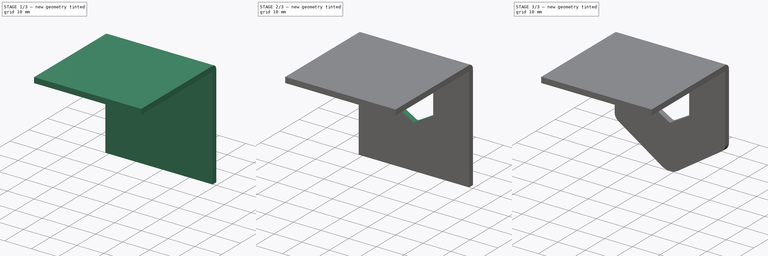
[diagram: build sequence overview — one tinted view per stage of 3, left to right]
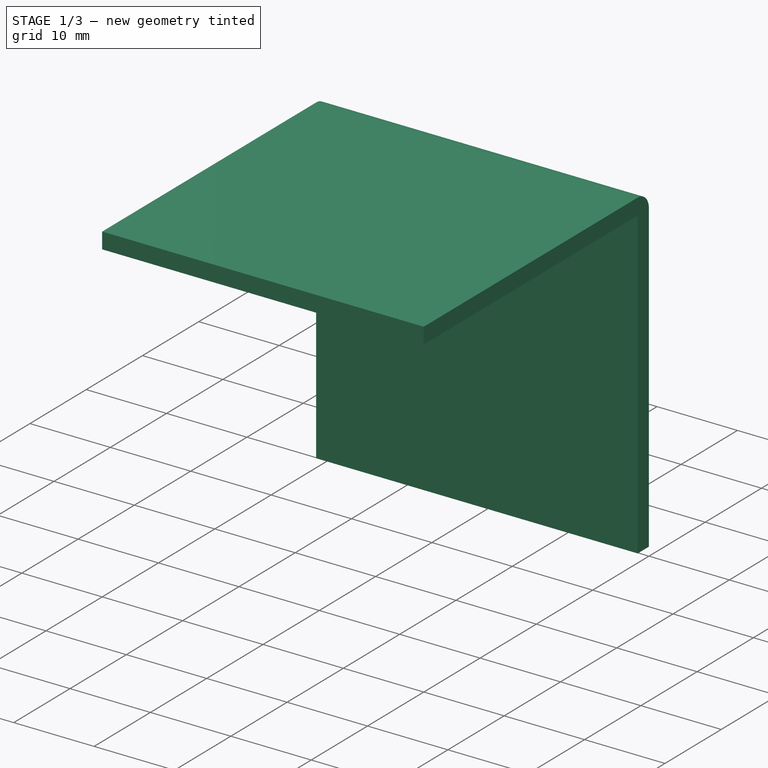
[diagram: stage 1 of 3 — iso view after this stage's code; geometry added in this stage tinted green]
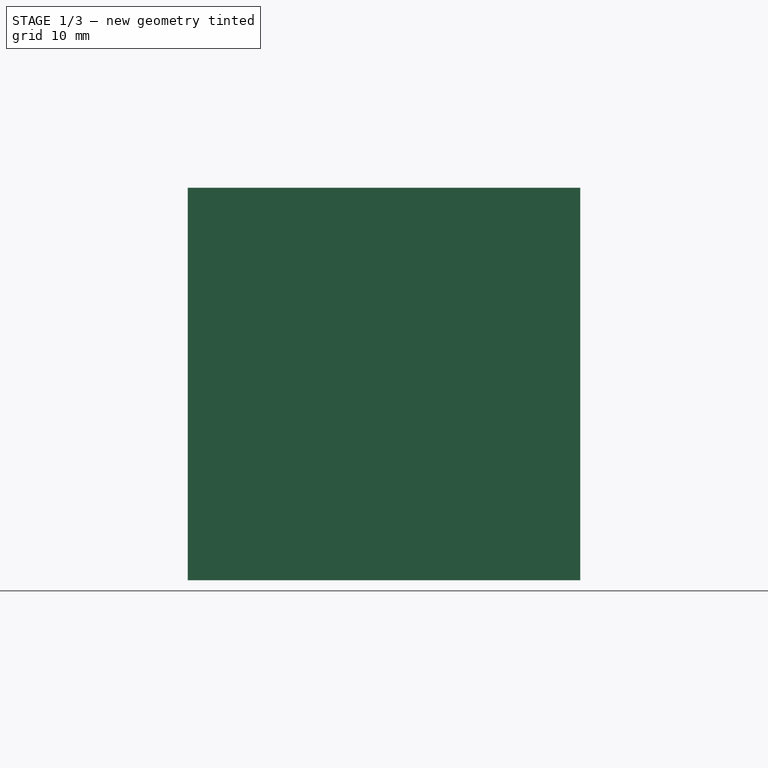
[diagram: stage 1 of 3 — front view after this stage's code; geometry added in this stage tinted green]
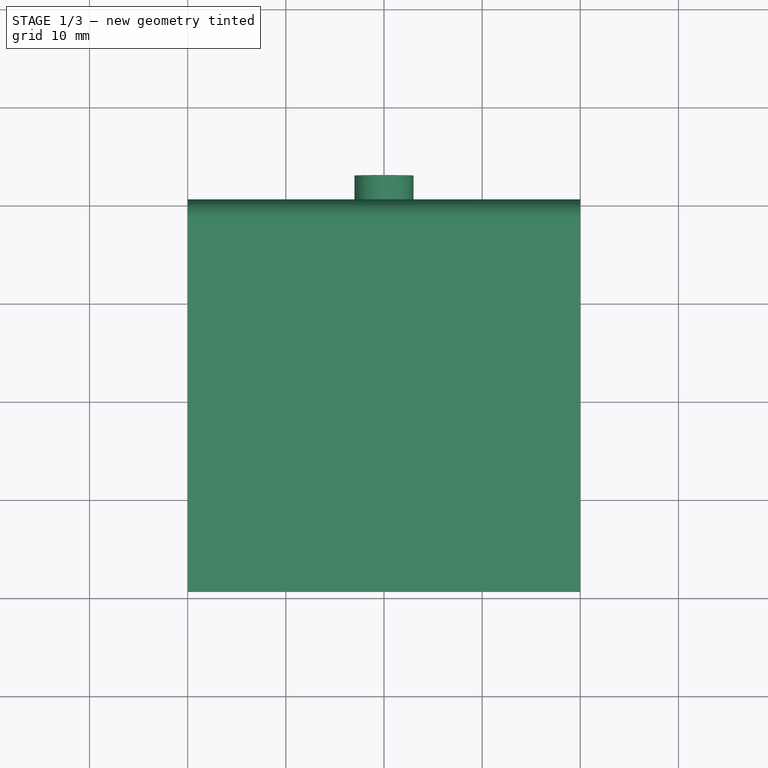
[diagram: stage 1 of 3 — top view after this stage's code; geometry added in this stage tinted green]
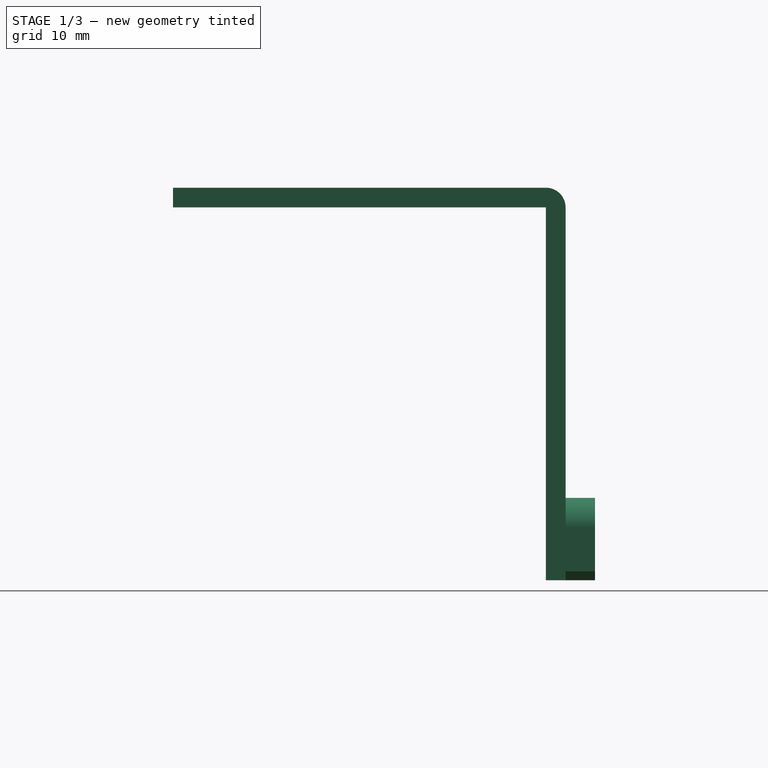
[diagram: stage 1 of 3 — right view after this stage's code; geometry added in this stage tinted green]
FCSTD DOCUMENT  (FreeCAD 0.21R33771 (Git))
Label: ComponentOrganizerCabinetHanger
License: All rights reserved
LicenseURL: http://en.wikipedia.org/wiki/All_rights_reserved
objects: Sketcher::SketchObject×7, PartDesign::Pad×3, PartDesign::Pocket×3, PartDesign::Body×1
note: 20 computed .brp shape members not serialized (recipe doc carries the construction recipe); baked Part::Feature solids carry a one-line shape summary decoded from their .brp

FEATURE [Sketcher::SketchObject] Sketch
  FullyConstrained = true
  MapMode = 5
  Placement = pos=(0,0,0) rot=(0.57735,0.57735,0.57735;2.0944rad)
  Support = -> [YZ_Plane]
  expr: Constraints[13] = <<Template>>.Constraints.Ro
  expr: Constraints[16] = <<Template>>.Constraints.Height
  sketch-geometry (7):
    g0: LineSegment StartX=-40 StartY=32.6 StartZ=0 EndX=-2 EndY=32.6 EndZ=0
    g1: LineSegment StartX=-2 StartY=32.6 StartZ=0 EndX=-2 EndY=-5.4 EndZ=0
    g2: LineSegment StartX=-2 StartY=-5.4 StartZ=0 EndX=0 EndY=-5.4 EndZ=0
    g3: LineSegment StartX=0 StartY=-5.4 StartZ=0 EndX=0 EndY=32.6 EndZ=0
    g4: LineSegment StartX=-2 StartY=34.6 StartZ=0 EndX=-40 EndY=34.6 EndZ=0
    g5: LineSegment StartX=-40 StartY=34.6 StartZ=0 EndX=-40 EndY=32.6 EndZ=0
    g6: ArcOfCircle CenterX=-2 CenterY=32.6 CenterZ=0 NormalX=0 NormalY=0 NormalZ=1 AngleXU=0 Radius=2 StartAngle=0 EndAngle=1.5708
  constraints (19):
    c: Horizontal(g0)
    c: Coincident(g0,g1)
    c: Vertical(g1)
    c: Coincident(g1,g2)
    c: Horizontal(g2)
    c: Coincident(g2,g3)
    c: Vertical(g3)
    c: Horizontal(g4)
    c: Coincident(g4,g5)
    c: Vertical(g5)
    c: Coincident(g0,g5)
    c: DistanceY(g5,g5) = 2
    c: PointOnObject(g-1,g3)
    c: DistanceY(g2,g-1) = 5.4
    c: Tangent(g3,g6) = -1.5708
    c: Tangent(g4,g6) = -1.5708
    c: DistanceY(g2,g4) = 40
    c: DistanceX(g4,g3) = 40
    c: Coincident(g6,g0)
FEATURE [PartDesign::Pad] Pad
  Direction = (1,-2e-16,3e-16)
  Length = 40
  Length2 = 10
  Midplane = true
  Placement = pos=(0,0,0) rot=(1,1,1;2.0944rad)
  Profile = -> Sketch
  ReferenceAxis = -> Sketch [N_Axis]
  Type = 0
  expr: Length = <<Template>>.Constraints.Width
FEATURE [Sketcher::SketchObject] Sketch001  label="Template"
  FullyConstrained = true
  MapMode = 5
  Placement = pos=(0,0,0) rot=(0,0.707107,0.707107;3.14159rad)
  Support = -> [XZ_Plane]
  sketch-geometry (21):
    g0: ArcOfCircle CenterX=0 CenterY=-8.13 CenterZ=0 NormalX=0 NormalY=0 NormalZ=1 AngleXU=0 Radius=5.95 StartAngle=2.1587 EndAngle=7.26607
    g1: LineSegment StartX=-3.3 StartY=-3.17899 StartZ=0 EndX=3.3 EndY=-3.17899 EndZ=0
    g2: LineSegment StartX=-3.3 StartY=-3.17899 StartZ=0 EndX=-3.3 EndY=0 EndZ=0
    g3: LineSegment StartX=3.3 StartY=-3.17899 StartZ=0 EndX=3.3 EndY=0 EndZ=0
    g4: ArcOfCircle CenterX=0 CenterY=0 CenterZ=0 NormalX=0 NormalY=0 NormalZ=1 AngleXU=0 Radius=3.3 StartAngle=0 EndAngle=3.14159
    g5: LineSegment StartX=-3.3 StartY=0 StartZ=0 EndX=3.3 EndY=0 EndZ=0
    g6: GeomPoint X=0 Y=3.3 Z=0
    g7: GeomPoint X=0 Y=-14.08 Z=0
    g8: LineSegment StartX=0 StartY=3.3 StartZ=0 EndX=0 EndY=-14.08 EndZ=0
    g9: Circle CenterX=0 CenterY=0 CenterZ=0 NormalX=0 NormalY=0 NormalZ=1 AngleXU=0 Radius=3
    g10: Circle CenterX=0 CenterY=0 CenterZ=0 NormalX=0 NormalY=0 NormalZ=1 AngleXU=0 Radius=5.4
    g11: LineSegment StartX=-3 StartY=0 StartZ=0 EndX=-3 EndY=-4.48999 EndZ=0
    g12: LineSegment StartX=3 StartY=-4e-16 StartZ=0 EndX=3 EndY=-4.48999 EndZ=0
    g13: LineSegment StartX=-20 StartY=34.6 StartZ=0 EndX=20 EndY=34.6 EndZ=0
    g14: LineSegment StartX=20 StartY=34.6 StartZ=0 EndX=20 EndY=-5.4 EndZ=0
    g15: LineSegment StartX=20 StartY=-5.4 StartZ=0 EndX=-20 EndY=-5.4 EndZ=0
    g16: LineSegment StartX=-20 StartY=-5.4 StartZ=0 EndX=-20 EndY=34.6 EndZ=0
    g17: LineSegment StartX=-3 StartY=-4.48999 StartZ=0 EndX=-18.6667 EndY=5.97781 EndZ=0
    g18: LineSegment StartX=3 StartY=-4.48999 StartZ=0 EndX=18.6667 EndY=5.97782 EndZ=0
    g19: ArcOfCircle CenterX=17 CenterY=8.47225 CenterZ=0 NormalX=0 NormalY=0 NormalZ=1 AngleXU=0 Radius=3 StartAngle=5.30142 EndAngle=6.28319
    g20: ArcOfCircle CenterX=-17 CenterY=8.47224 CenterZ=0 NormalX=0 NormalY=0 NormalZ=1 AngleXU=0 Radius=3 StartAngle=3.14159 EndAngle=4.12336
  constraints (54):
    c: Coincident(g1,g0)
    c: Coincident(g1,g0)
    c: Horizontal(g1)
    c: Coincident(g2,g0)
    c: Vertical(g2)
    c: Coincident(g3,g0)
    c: Vertical(g3)
    c: Coincident(g5,g2)
    c: Coincident(g5,g3)
    c: Horizontal(g5)
    c: PointOnObject(g4,g5)
    c: Radius(g0) = 5.95
    c: Radius(g4) = 3.3
    c: Coincident(g4,g3)
    c: Coincident(g4,g2)
    c: PointOnObject(g6,g4)
    c: PointOnObject(g7,g0)
    c: Coincident(g8,g6)
    c: Coincident(g8,g7)
    c: Vertical(g8)
    c: PointOnObject(g0,g8)
    c: DistanceY(g8,g8) = 17.38
    c: Coincident(g-1,g4)
    c: Coincident(g9,g4)
    c: Radius(g9) = 3  'Ri'
    c: Coincident(g10,g9)
    c: Radius(g10) = 5.4  'Ro'
    c: PointOnObject(g11,g10)
    c: Vertical(g11)
    c: PointOnObject(g12,g10)
    c: Vertical(g12)
    c: Tangent(g11,g9) = -1.5708
    c: Tangent(g12,g9) = 1.5708
    c: Coincident(g13,g14)
    c: Coincident(g14,g15)
    c: Coincident(g15,g16)
    c: Coincident(g16,g13)
    c: Horizontal(g13)
    c: Vertical(g14)
    c: Vertical(g16)
    c: Tangent(g15,g10)
    c: Symmetric(g14,g15,g8)
    c: DistanceX(g13,g13) = 40  'Width'
    c: DistanceY(g16,g16) = 40  'Height'
    c: Coincident(g18,g12)
    c: Coincident(g17,g11)
    c: Tangent(g17,g10)
    c: Tangent(g18,g10)
    c: Equal(g20,g19)
    c: Equal(g19,g9)
    c: Tangent(g19,g18) = -1.5708
    c: Tangent(g20,g17) = 1.5708
    c: Tangent(g20,g16) = 1.5708
    c: Tangent(g19,g14) = 1.5708
FEATURE [Sketcher::SketchObject] Sketch002
  ExternalGeometry = -> [Sketch001]
  FullyConstrained = true
  MapMode = 5
  Placement = pos=(0,0,0) rot=(0,0.707107,0.707107;3.14159rad)
  Support = -> [XZ_Plane]
  sketch-geometry (4):
    g0: ArcOfCircle CenterX=2e-16 CenterY=1.70314e-05 CenterZ=0 NormalX=0 NormalY=0 NormalZ=1 AngleXU=0 Radius=3 StartAngle=6.28318 EndAngle=9.42478
    g1: ArcOfCircle CenterX=-5e-16 CenterY=2.07669e-11 CenterZ=0 NormalX=0 NormalY=0 NormalZ=1 AngleXU=0 Radius=5.4 StartAngle=4.12336 EndAngle=5.30142
    g2: LineSegment StartX=-3 StartY=-7e-16 StartZ=0 EndX=-3 EndY=-4.48999 EndZ=0
    g3: LineSegment StartX=3 StartY=1e-16 StartZ=0 EndX=3 EndY=-4.48999 EndZ=0
  constraints (10):
    c: Coincident(g2,g0)
    c: Coincident(g2,g1)
    c: Coincident(g3,g0)
    c: Coincident(g3,g1)
    c: Coincident(g-6,g0)
    c: Coincident(g1,g-6)
    c: Coincident(g-5,g1)
    c: Coincident(g-5,g0)
    c: Equal(g0,g-3)
    c: Equal(g1,g-4)
FEATURE [PartDesign::Pad] Pad001
  BaseFeature = -> Pad
  Direction = (0,1,2e-16)
  Length = 3
  Length2 = 10
  Placement = pos=(0,0,0) rot=(1,1,1;2.0944rad)
  Profile = -> Sketch002
  ReferenceAxis = -> Sketch002 [N_Axis]
  Type = 0
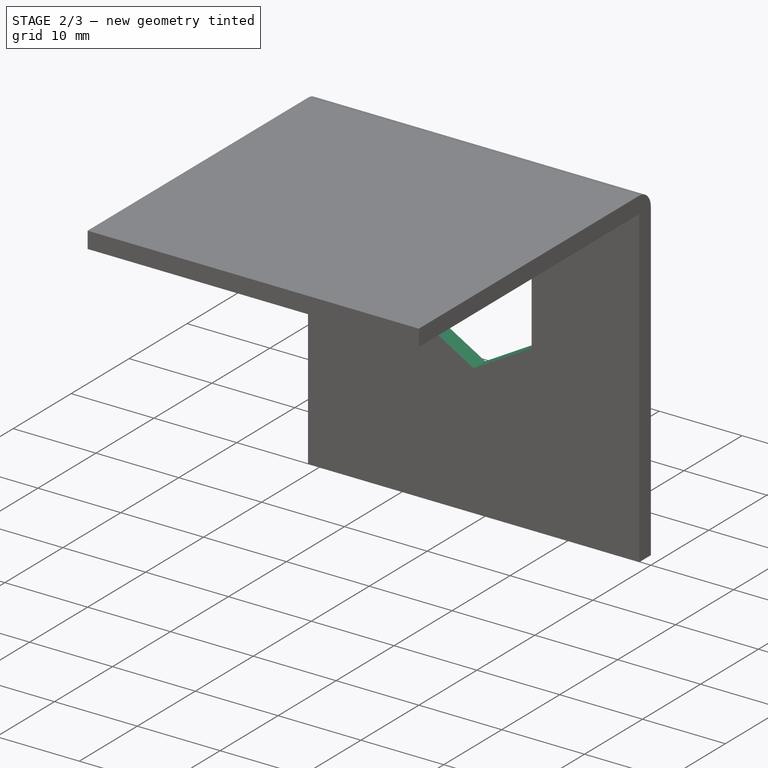
[diagram: stage 2 of 3 — iso view after this stage's code; geometry added in this stage tinted green]
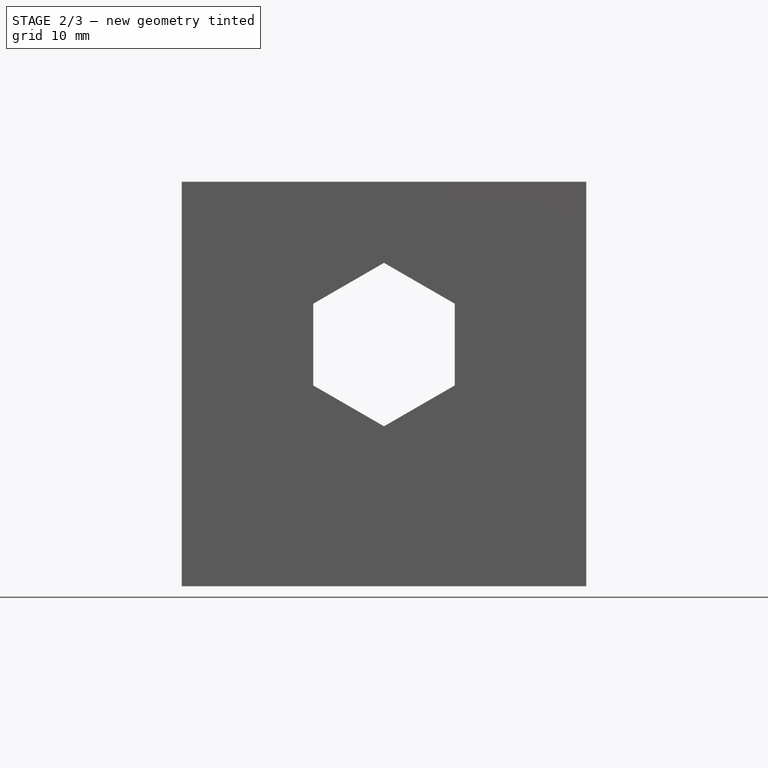
[diagram: stage 2 of 3 — front view after this stage's code; geometry added in this stage tinted green]
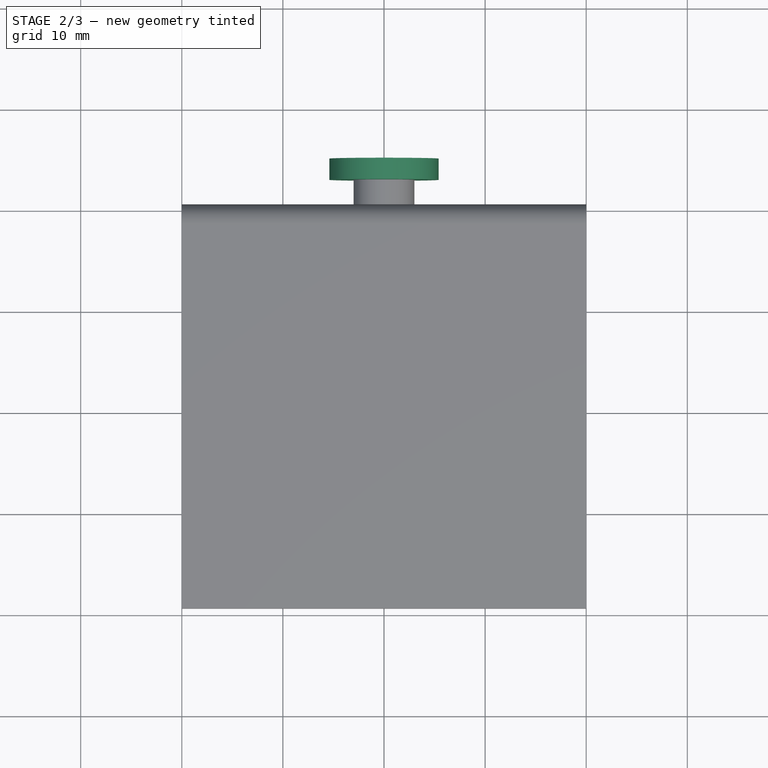
[diagram: stage 2 of 3 — top view after this stage's code; geometry added in this stage tinted green]
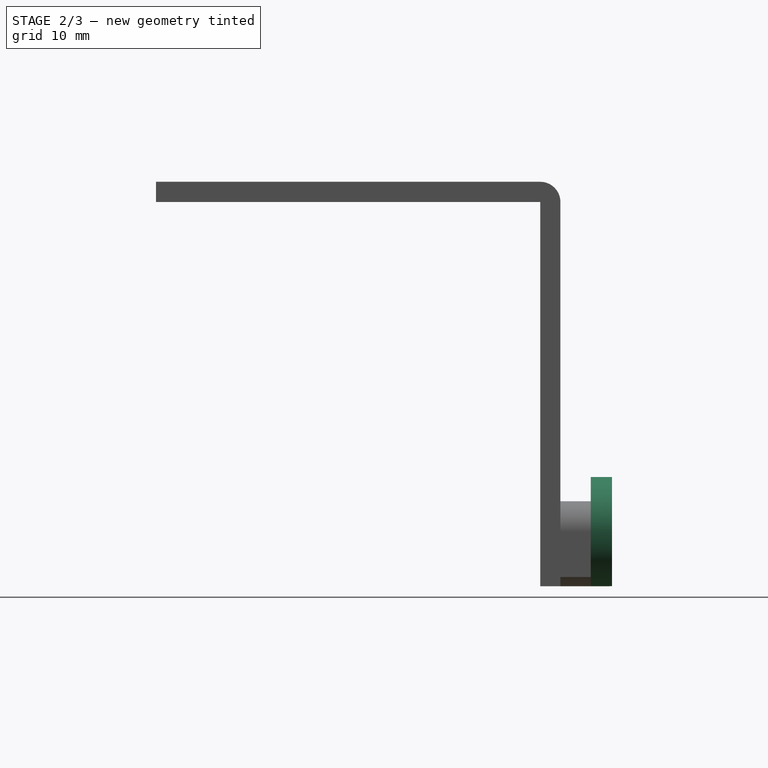
[diagram: stage 2 of 3 — right view after this stage's code; geometry added in this stage tinted green]
FEATURE [Sketcher::SketchObject] Sketch003
  AttachmentOffset = pos=(0,0,3) rot=(0,0,1;0rad)
  ExternalGeometry = -> [Sketch001]
  FullyConstrained = true
  MapMode = 5
  Placement = pos=(0,3,7e-16) rot=(0,0.707107,0.707107;3.14159rad)
  Support = -> [XZ_Plane]
  expr: .AttachmentOffset.Base.z = <<Pad001>>.Length
  sketch-geometry (1):
    g0: Circle CenterX=0 CenterY=-1e-16 CenterZ=0 NormalX=0 NormalY=0 NormalZ=1 AngleXU=0 Radius=5.4
  constraints (2):
    c: Coincident(g0,g-3)
    c: Equal(g-3,g0)
FEATURE [PartDesign::Pad] Pad002
  BaseFeature = -> Pad001
  Direction = (0,1,2e-16)
  Length = 2.1
  Length2 = 10
  Placement = pos=(0,0,0) rot=(1,1,1;2.0944rad)
  Profile = -> Sketch003
  ReferenceAxis = -> Sketch003 [N_Axis]
  Type = 0
FEATURE [Sketcher::SketchObject] Sketch004
  ExternalGeometry = -> [Sketch001]
  FullyConstrained = true
  MapMode = 5
  Placement = pos=(0,0,0) rot=(1,0,0;1.5708rad)
  Support = -> [XZ_Plane]
  sketch-geometry (7):
    g0: ArcOfCircle CenterX=-17 CenterY=8.47225 CenterZ=0 NormalX=0 NormalY=0 NormalZ=1 AngleXU=0 Radius=3 StartAngle=3.14159 EndAngle=4.12335
    g1: ArcOfCircle CenterX=0 CenterY=0 CenterZ=0 NormalX=0 NormalY=0 NormalZ=1 AngleXU=0 Radius=5.4 StartAngle=4.12336 EndAngle=4.71239
    g2: LineSegment StartX=-22 StartY=8.47225 StartZ=0 EndX=-22 EndY=-7.4 EndZ=0
    g3: LineSegment StartX=-22 StartY=-7.4 StartZ=0 EndX=0 EndY=-7.4 EndZ=0
    g4: LineSegment StartX=-18.6667 StartY=5.97782 StartZ=0 EndX=-3 EndY=-4.48999 EndZ=0
    g5: LineSegment StartX=-20 StartY=8.47225 StartZ=0 EndX=-22 EndY=8.47225 EndZ=0
    g6: LineSegment StartX=0 StartY=-5.4 StartZ=0 EndX=0 EndY=-7.4 EndZ=0
  constraints (19):
    c: Coincident(g0,g-4)
    c: Coincident(g1,g-4)
    c: Equal(g0,g-3)
    c: Coincident(g4,g0)
    c: Coincident(g4,g1)
    c: Coincident(g1,g-5)
    c: PointOnObject(g1,g-2)
    c: Tangent(g0,g-9) = -1.5708
    c: Coincident(g5,g0)
    c: Horizontal(g5)
    c: Coincident(g2,g5)
    c: Vertical(g2)
    c: Horizontal(g3)
    c: Coincident(g6,g1)
    c: Vertical(g6)
    c: Coincident(g3,g6)
    c: Coincident(g2,g3)
    c: DistanceX(g5,g5) = 2
    c: Equal(g6,g5)
FEATURE [Sketcher::SketchObject] Sketch005
  ExternalGeometry = -> [Sketch001]
  FullyConstrained = true
  MapMode = 5
  Placement = pos=(0,0,0) rot=(1,0,0;1.5708rad)
  Support = -> [XZ_Plane]
  sketch-geometry (7):
    g0: ArcOfCircle CenterX=17 CenterY=8.47224 CenterZ=0 NormalX=0 NormalY=0 NormalZ=1 AngleXU=0 Radius=3 StartAngle=5.30142 EndAngle=6.28319
    g1: ArcOfCircle CenterX=0 CenterY=0 CenterZ=0 NormalX=0 NormalY=0 NormalZ=1 AngleXU=0 Radius=5.4 StartAngle=4.71239 EndAngle=5.30142
    g2: LineSegment StartX=22 StartY=8.47224 StartZ=0 EndX=22 EndY=-7.4 EndZ=0
    g3: LineSegment StartX=22 StartY=-7.4 StartZ=0 EndX=0 EndY=-7.4 EndZ=0
    g4: LineSegment StartX=3 StartY=-4.48999 StartZ=0 EndX=18.6667 EndY=5.97781 EndZ=0
    g5: LineSegment StartX=20 StartY=8.47224 StartZ=0 EndX=22 EndY=8.47224 EndZ=0
    g6: LineSegment StartX=0 StartY=-5.4 StartZ=0 EndX=0 EndY=-7.4 EndZ=0
  constraints (19):
    c: Coincident(g0,g-3)
    c: Coincident(g-5,g1)
    c: Equal(g0,g-3)
    c: Coincident(g1,g-6)
    c: Coincident(g4,g1)
    c: Coincident(g4,g0)
    c: Horizontal(g3)
    c: Vertical(g2)
    c: Coincident(g2,g3)
    c: Coincident(g5,g0)
    c: Horizontal(g5)
    c: Vertical(g6)
    c: PointOnObject(g1,g-2)
    c: Coincident(g6,g1)
    c: Equal(g5,g6)
    c: DistanceX(g5,g5) = 2
    c: Coincident(g0,g-3)
    c: Coincident(g2,g5)
    c: Coincident(g3,g6)
FEATURE [Sketcher::SketchObject] Sketch006
  ExternalGeometry = -> [Sketch001]
  FullyConstrained = true
  MapMode = 5
  Placement = pos=(0,0,0) rot=(0,0.707107,0.707107;3.14159rad)
  Support = -> [XZ_Plane]
  sketch-geometry (9):
    g0: Circle CenterX=0 CenterY=18.5 CenterZ=0 NormalX=0 NormalY=0 NormalZ=1 AngleXU=0 Radius=7
    g1: LineSegment StartX=0 StartY=11.5 StartZ=0 EndX=0 EndY=3 EndZ=0
    g2: LineSegment StartX=7 StartY=14.4585 StartZ=0 EndX=7 EndY=22.5415 EndZ=0
    g3: LineSegment StartX=7 StartY=22.5415 StartZ=0 EndX=-9e-16 EndY=26.5829 EndZ=0
    g4: LineSegment StartX=-9e-16 StartY=26.5829 StartZ=0 EndX=-7 EndY=22.5415 EndZ=0
    g5: LineSegment StartX=-7 StartY=22.5415 StartZ=0 EndX=-7 EndY=14.4585 EndZ=0
    g6: LineSegment StartX=-7 StartY=14.4585 StartZ=0 EndX=0 EndY=10.4171 EndZ=0
    g7: LineSegment StartX=0 StartY=10.4171 StartZ=0 EndX=7 EndY=14.4585 EndZ=0
    g8: Circle CenterX=0 CenterY=18.5 CenterZ=0 NormalX=0 NormalY=0 NormalZ=1 AngleXU=0 Radius=8.0829
  constraints (23):
    c: PointOnObject(g1,g0)
    c: Vertical(g1)
    c: PointOnObject(g1,g-3)
    c: PointOnObject(g-3,g1)
    c: PointOnObject(g0,g1)
    c: DistanceY(g1,g1) = 8.5
    c: Radius(g0) = 7
    c: Coincident(g2,g3)
    c: Coincident(g3,g4)
    c: Coincident(g4,g5)
    c: Coincident(g5,g6)
    c: Coincident(g6,g7)
    c: Coincident(g7,g2)
    c: Equal(g2, g3-g7) x5
    c: PointOnObject(g2,g8)
    c: PointOnObject(g3,g8)
    c: PointOnObject(g4,g8)
    c: PointOnObject(g5,g8)
    c: PointOnObject(g6,g8)
    c: PointOnObject(g7,g8)
    c: Coincident(g8,g0)
    c: Vertical(g2)
    c: Tangent(g2,g0)
FEATURE [PartDesign::Pocket] Pocket002
  BaseFeature = -> Pad002
  Direction = (0,-1,-2e-16)
  Length = 5
  Length2 = 5
  Placement = pos=(0,0,0) rot=(1,1,1;2.0944rad)
  Profile = -> Sketch006
  ReferenceAxis = -> Sketch006 [N_Axis]
  Type = 1
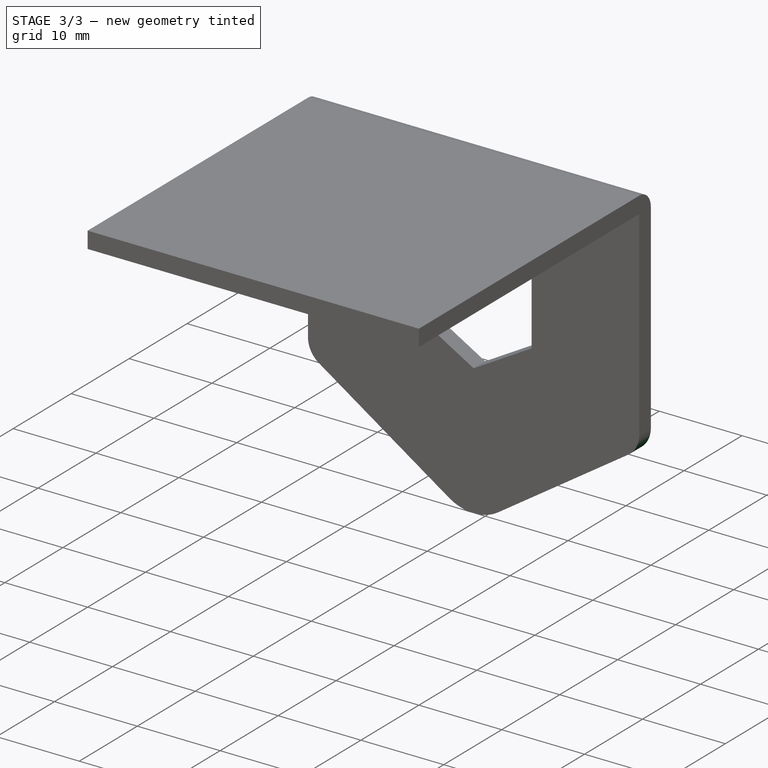
[diagram: stage 3 of 3 — iso view after this stage's code; geometry added in this stage tinted green]
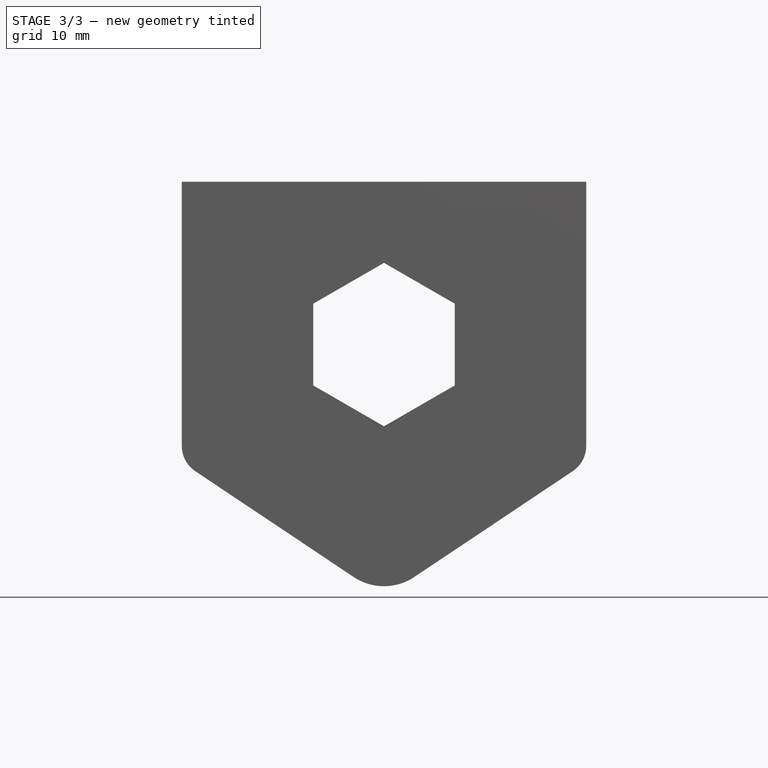
[diagram: stage 3 of 3 — front view after this stage's code; geometry added in this stage tinted green]
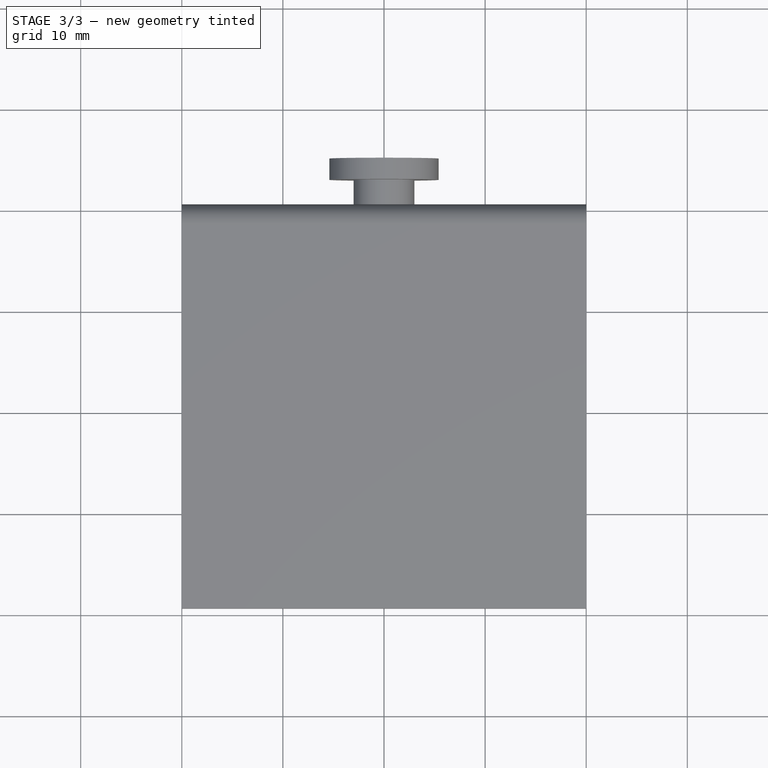
[diagram: stage 3 of 3 — top view after this stage's code; geometry added in this stage tinted green]
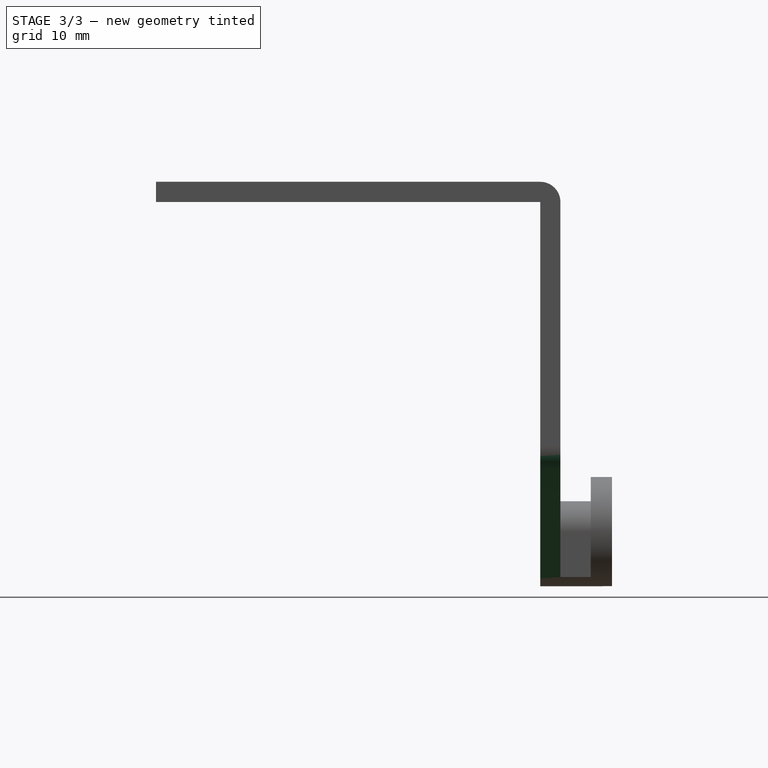
[diagram: stage 3 of 3 — right view after this stage's code; geometry added in this stage tinted green]
FEATURE [PartDesign::Pocket] Pocket
  BaseFeature = -> Pocket002
  Direction = (0,1,2e-16)
  Length = 5
  Length2 = 5
  Placement = pos=(0,0,0) rot=(1,1,1;2.0944rad)
  Profile = -> Sketch004
  ReferenceAxis = -> Sketch004 [N_Axis]
  Reversed = true
  Type = 0
FEATURE [PartDesign::Pocket] Pocket001
  BaseFeature = -> Pocket
  Direction = (0,1,2e-16)
  Length = 5
  Length2 = 5
  Placement = pos=(0,0,0) rot=(1,1,1;2.0944rad)
  Profile = -> Sketch005
  ReferenceAxis = -> Sketch005 [N_Axis]
  Refine = true
  Reversed = true
  Type = 0
FEATURE [PartDesign::Body] Body
  Group = -> [Sketch001,Sketch,Pad,Sketch002,Pad001,Sketch003,Pad002,Sketch004,Sketch006,Pocket002,Pocket,Sketch005,Pocket001]
  Origin = -> Origin
  Tip = -> Pocket001
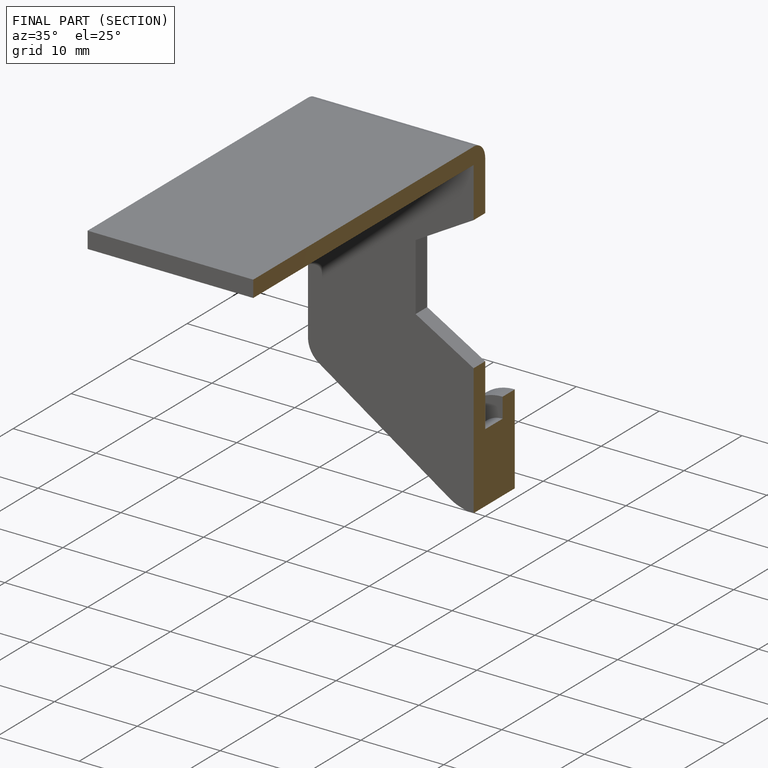
[diagram: finished part — half-section view (interior)]
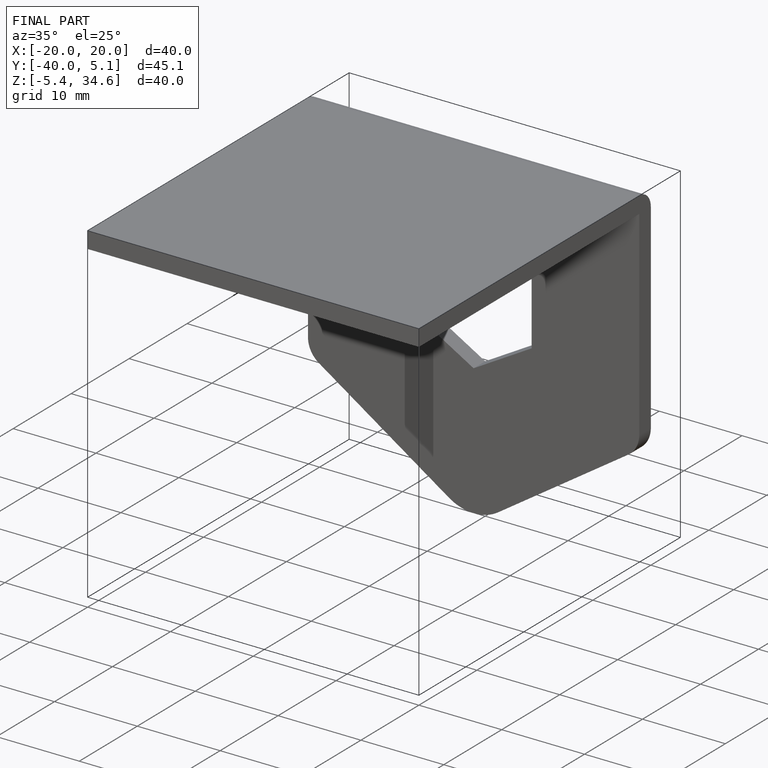
[diagram: finished part — iso view with bounding-box wireframe]
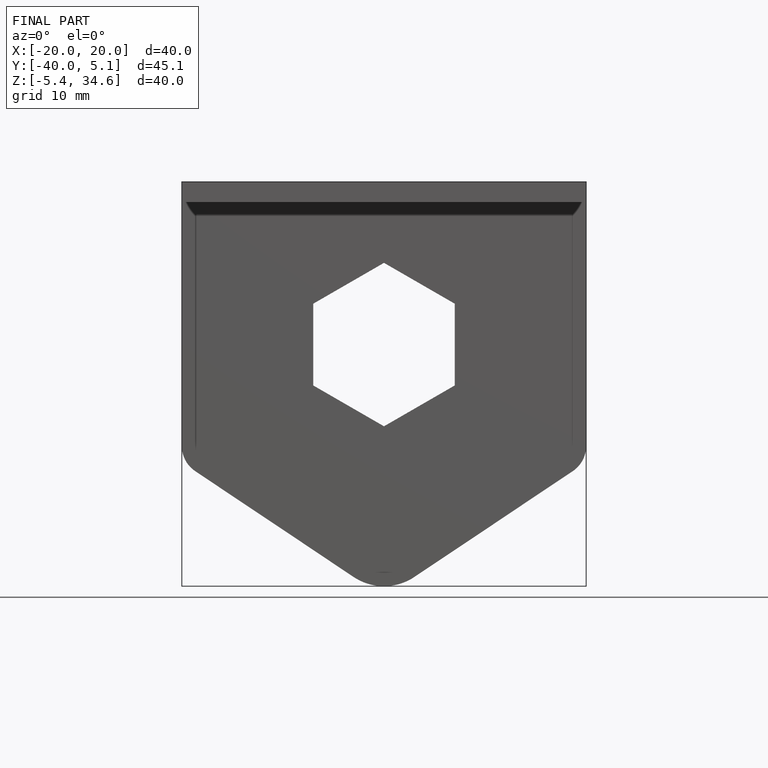
[diagram: finished part — front view with bounding-box wireframe]
